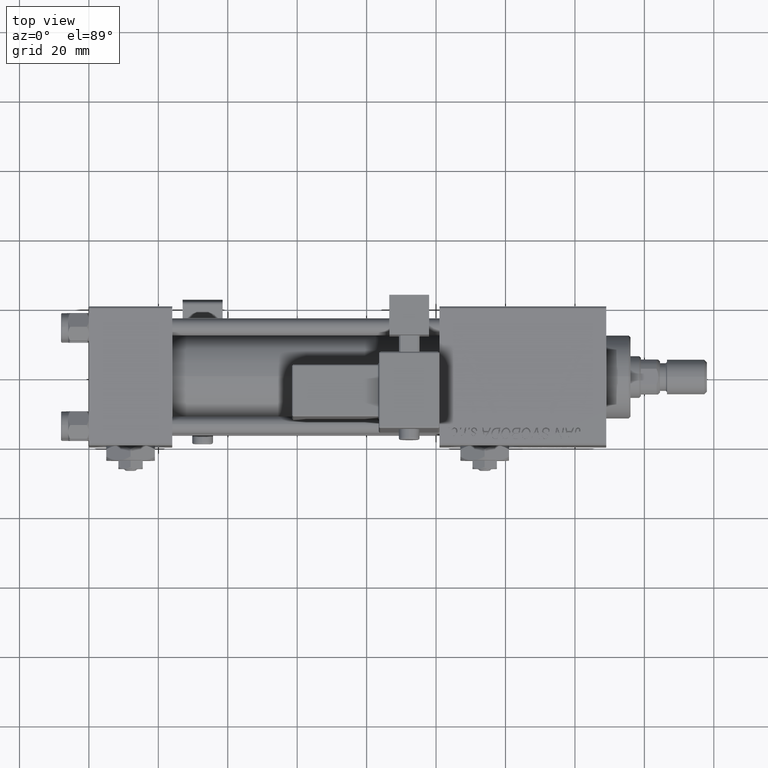
[diagram: clean part render]
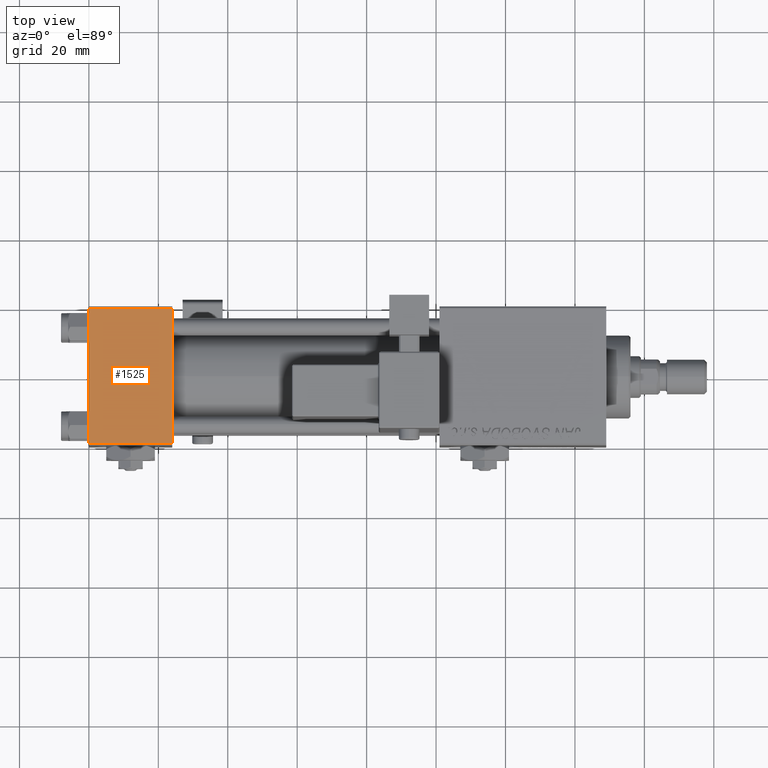
[diagram: same view with one face highlighted and labeled with its STEP entity id]
A machine part, top view. The second image highlights one B-rep face of the part: STEP entity #1525.
In plain terms, the highlighted planar face has unit normal (0, 0, -1).
Its self-contained STEP definition (entity closure, byte-faithful):
#1525 = ADVANCED_FACE ( 'NONE', ( #53215 ), #41235, .F. ) ;
#2253 = EDGE_CURVE ( 'NONE', #18243, #45072, #24989, .T. ) ;
#2813 = DIRECTION ( 'NONE',  ( -1.000000000000000000, 0.000000000000000000, 0.000000000000000000 ) ) ;
#2939 = CARTESIAN_POINT ( 'NONE',  ( 0.000000000000000000, -19.49999999999999289, 19.99999999999998934 ) ) ;
#4126 = DIRECTION ( 'NONE',  ( 0.000000000000000000, -1.000000000000000000, -2.602085213965210149E-16 ) ) ;
#4502 = EDGE_CURVE ( 'NONE', #18048, #45072, #52091, .T. ) ;
#7521 = LINE ( 'NONE', #15606, #14161 ) ;
#8387 = CARTESIAN_POINT ( 'NONE',  ( 24.00000000000000000, -19.49999999999999289, 19.99999999999998934 ) ) ;
#9445 = VERTEX_POINT ( 'NONE', #11258 ) ;
#10079 = ORIENTED_EDGE ( 'NONE', *, *, #2253, .F. ) ;
#11258 = CARTESIAN_POINT ( 'NONE',  ( 0.000000000000000000, 19.50000000000000000, 20.00000000000000000 ) ) ;
#14161 = VECTOR ( 'NONE', #2813, 1000.000000000000000 ) ;
#15107 = DIRECTION ( 'NONE',  ( 0.000000000000000000, 1.000000000000000000, 2.602085213965210149E-16 ) ) ;
#15606 = CARTESIAN_POINT ( 'NONE',  ( 0.000000000000000000, 19.50000000000000000, 20.00000000000000000 ) ) ;
#16421 = CARTESIAN_POINT ( 'NONE',  ( 0.000000000000000000, 20.00000000000000000, 20.00000000000000000 ) ) ;
#18048 = VERTEX_POINT ( 'NONE', #2939 ) ;
#18240 = EDGE_CURVE ( 'NONE', #18243, #9445, #7521, .T. ) ;
#18243 = VERTEX_POINT ( 'NONE', #53446 ) ;
#18404 = DIRECTION ( 'NONE',  ( 1.000000000000000000, 0.000000000000000000, 0.000000000000000000 ) ) ;
#21355 = CARTESIAN_POINT ( 'NONE',  ( 24.00000000000000000, 20.00000000000000000, 20.00000000000000000 ) ) ;
#22896 = EDGE_CURVE ( 'NONE', #9445, #18048, #42018, .T. ) ;
#24989 = LINE ( 'NONE', #21355, #41556 ) ;
#25865 = VECTOR ( 'NONE', #45907, 1000.000000000000000 ) ;
#28296 = VECTOR ( 'NONE', #18404, 1000.000000000000000 ) ;
#28625 = ORIENTED_EDGE ( 'NONE', *, *, #22896, .T. ) ;
#39715 = ORIENTED_EDGE ( 'NONE', *, *, #4502, .T. ) ;
#41235 = PLANE ( 'NONE',  #46842 ) ;
#41556 = VECTOR ( 'NONE', #4126, 1000.000000000000000 ) ;
#42018 = LINE ( 'NONE', #16421, #25865 ) ;
#44009 = CARTESIAN_POINT ( 'NONE',  ( 24.00000000000000000, -19.49999999999999289, 19.99999999999998934 ) ) ;
#44858 = CARTESIAN_POINT ( 'NONE',  ( 24.00000000000000000, 20.00000000000000000, 20.00000000000000000 ) ) ;
#45072 = VERTEX_POINT ( 'NONE', #8387 ) ;
#45907 = DIRECTION ( 'NONE',  ( 0.000000000000000000, -1.000000000000000000, -2.602085213965210149E-16 ) ) ;
#46842 = AXIS2_PLACEMENT_3D ( 'NONE', #44858, #52928, #15107 ) ;
#49071 = EDGE_LOOP ( 'NONE', ( #28625, #39715, #10079, #49084 ) ) ;
#49084 = ORIENTED_EDGE ( 'NONE', *, *, #18240, .T. ) ;
#52091 = LINE ( 'NONE', #44009, #28296 ) ;
#52928 = DIRECTION ( 'NONE',  ( 0.000000000000000000, 2.602085213965210149E-16, -1.000000000000000000 ) ) ;
#53215 = FACE_OUTER_BOUND ( 'NONE', #49071, .T. ) ;
#53446 = CARTESIAN_POINT ( 'NONE',  ( 24.00000000000000000, 19.50000000000000000, 20.00000000000000000 ) ) ;